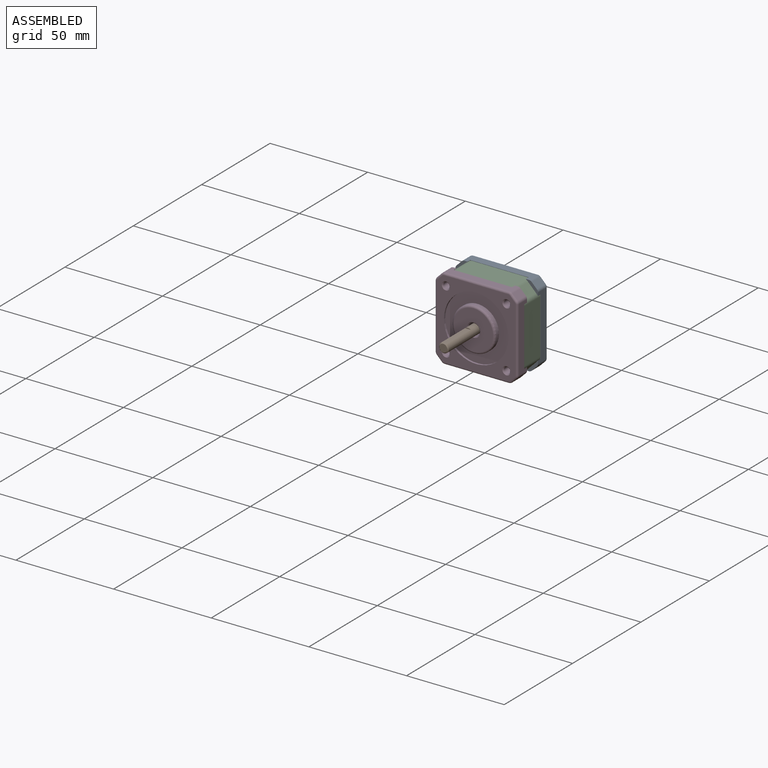
[diagram: assembled view]
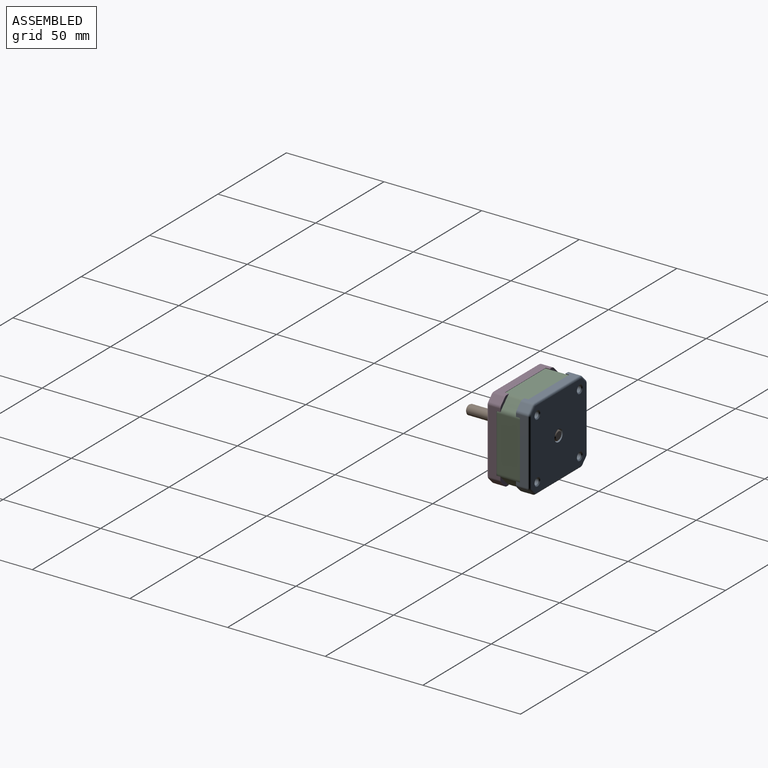
[diagram: assembled view, second angle]
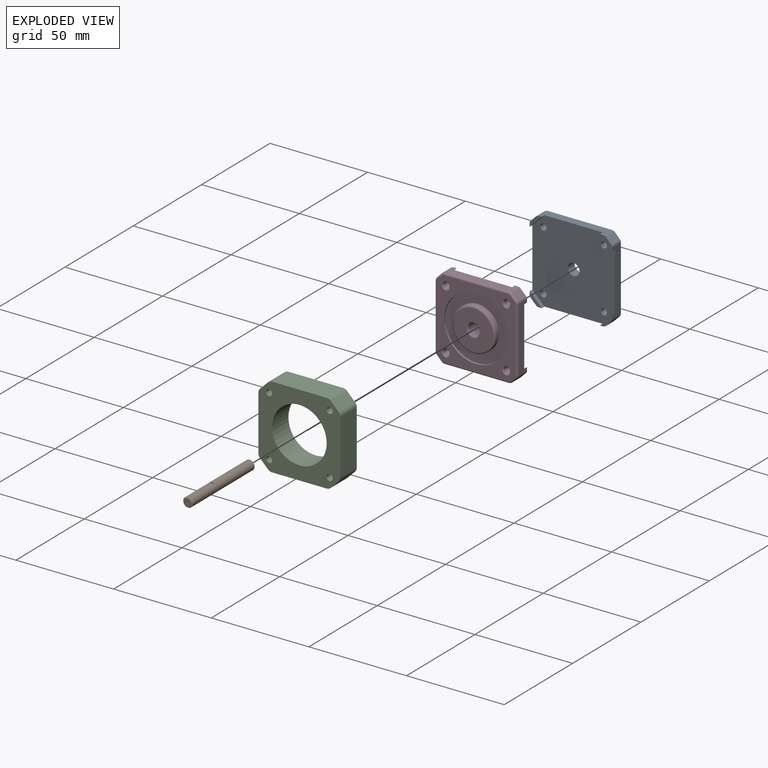
[diagram: exploded view]
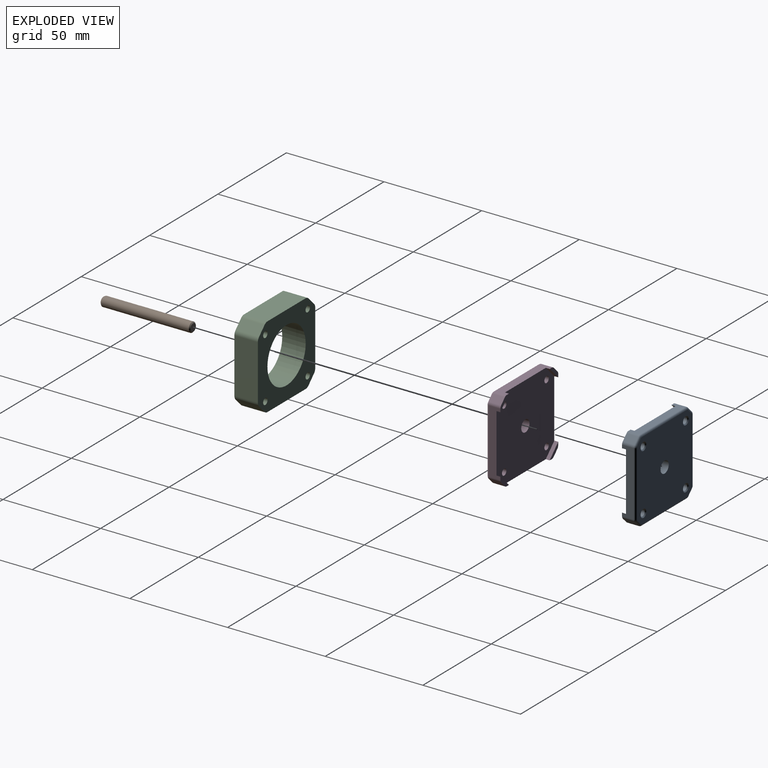
[diagram: exploded view, second angle]
ASSEMBLY  parts=4 mates=3
PART A: 51 faces, bbox 42.6x7x42.6 mm
  f0: plane 32.94x6mm, normal (0,0,1), area 138mm2, adj f9,f10,f22,f23,f31,f33,f34,f35
  f1: plane 32.94x6mm, normal (-1,0,0), area 138mm2, adj f10,f11,f24,f25,f30,f33,f34,f42
  f2: plane 32.94x6mm, normal (0,0,-1), area 138mm2, adj f11,f12,f20,f21,f30,f32,f33,f50
  f3: cylinder r=1.6mm len=4.5mm, axis (0,1,0), area 45.2mm2, adj f26,f33
  f4: cylinder r=1.6mm len=4.5mm, axis (0,1,0), area 45.2mm2, adj f29,f33
  f5: cylinder r=1.6mm len=4.5mm, axis (0,1,0), area 45.2mm2, adj f28,f33
  f6: cylinder r=1.6mm len=4.5mm, axis (0,1,0), area 45.2mm2, adj f27,f33
  f7: cylinder r=3mm len=6mm, axis (0,1,0), area 94.2mm2, adj f13,f33
  f8: plane 32.94x6mm, normal (1,0,0), area 138mm2, adj f9,f12,f18,f19,f31,f32,f33,f43
  f9: plane 6.24x6.24mm, normal (0,-1,0), area 11.9mm2, adj f0,f8,f17,f19,f23,f31
  f10: plane 6.24x6.24mm, normal (0,-1,0), area 11.9mm2, adj f0,f1,f14,f22,f24,f34
  f11: plane 6.24x6.24mm, normal (0,-1,0), area 11.9mm2, adj f1,f2,f15,f20,f25,f30
  f12: plane 6.24x6.24mm, normal (0,-1,0), area 11.9mm2, adj f2,f8,f16,f18,f21,f32
  f13: plane 40.3x40.3mm, normal (0,1,0), area 1518.9mm2, adj f7,f26,f27,f28,f29,f35,f36,f37
  f14: plane 6x2.68mm, normal (-0.71,0,0.71), area 22.7mm2, adj f10,f22,f24,f38
  f15: plane 6x2.68mm, normal (-0.71,0,-0.71), area 22.7mm2, adj f11,f20,f25,f46
  f16: plane 6x2.68mm, normal (0.71,0,-0.71), area 22.7mm2, adj f12,f18,f21,f47
  f17: plane 6x2.68mm, normal (0.71,0,0.71), area 22.7mm2, adj f9,f19,f23,f39
  f18: cylinder r=2mm len=6mm, axis (0,1,0), area 9.4mm2, adj f8,f12,f16,f45
  f19: cylinder r=2mm len=6mm, axis (0,1,0), area 9.4mm2, adj f8,f9,f17,f41
  f20: cylinder r=2mm len=6mm, axis (0,-1,0), area 9.4mm2, adj f2,f11,f15,f48
  f21: cylinder r=2mm len=6mm, axis (0,-1,0), area 9.4mm2, adj f2,f12,f16,f49
  f22: cylinder r=2mm len=6mm, axis (0,1,0), area 9.4mm2, adj f0,f10,f14,f36
  f23: cylinder r=2mm len=6mm, axis (0,1,0), area 9.4mm2, adj f0,f9,f17,f37
  f24: cylinder r=2mm len=6mm, axis (0,-1,0), area 9.4mm2, adj f1,f10,f14,f40
  f25: cylinder r=2mm len=6mm, axis (0,-1,0), area 9.4mm2, adj f1,f11,f15,f44
  f26: cone r=2.1mm half-angle=45deg, axis (0,1,0), area 8.2mm2, adj f3,f13
  f27: cone r=2.1mm half-angle=45deg, axis (0,1,0), area 8.2mm2, adj f6,f13
  f28: cone r=2.1mm half-angle=45deg, axis (0,1,0), area 8.2mm2, adj f5,f13
  f29: cone r=2.1mm half-angle=45deg, axis (0,1,0), area 8.2mm2, adj f4,f13
  f30: plane 6.24x6.24mm, normal (0.71,0,0.71), area 17.6mm2, adj f1,f2,f11,f33
  f31: plane 6.24x6.24mm, normal (-0.71,0,-0.71), area 17.6mm2, adj f0,f8,f9,f33
  f32: plane 6.24x6.24mm, normal (-0.71,0,0.71), area 17.6mm2, adj f2,f8,f12,f33
  f33: plane 42.3x42.3mm, normal (0,-1,0), area 1651mm2, adj f0,f1,f2,f3,f4,f5,f6,f7
  f34: plane 6.24x6.24mm, normal (0.71,0,-0.71), area 17.6mm2, adj f0,f1,f10,f33
  f35: cylinder r=1mm len=32.94mm, axis (-1,0,0), area 51.7mm2, adj f0,f13,f36,f37
  f36: torus R=1mm, axis (0,-1,0), area 2mm2, adj f13,f22,f35,f38
  f37: torus R=1mm, axis (0,-1,0), area 2mm2, adj f13,f23,f35,f39
  f38: cylinder r=1mm len=3.39mm, axis (0.71,0,0.71), area 5.9mm2, adj f13,f14,f36,f40
  f39: cylinder r=1mm len=3.39mm, axis (-0.71,0,0.71), area 5.9mm2, adj f13,f17,f37,f41
  f40: torus R=1mm, axis (0,-1,0), area 2mm2, adj f13,f24,f38,f42
  f41: torus R=1mm, axis (0,-1,0), area 2mm2, adj f13,f19,f39,f43
  f42: cylinder r=1mm len=32.94mm, axis (0,0,-1), area 51.7mm2, adj f1,f13,f40,f44
  f43: cylinder r=1mm len=32.94mm, axis (0,0,1), area 51.7mm2, adj f8,f13,f41,f45
  f44: torus R=1mm, axis (0,-1,0), area 2mm2, adj f13,f25,f42,f46
  f45: torus R=1mm, axis (0,-1,0), area 2mm2, adj f13,f18,f43,f47
  f46: cylinder r=1mm len=3.39mm, axis (0.71,0,-0.71), area 5.9mm2, adj f13,f15,f44,f48
  f47: cylinder r=1mm len=3.39mm, axis (-0.71,0,-0.71), area 5.9mm2, adj f13,f16,f45,f49
  f48: torus R=1mm, axis (0,-1,0), area 2mm2, adj f13,f20,f46,f50
  f49: torus R=1mm, axis (0,-1,0), area 2mm2, adj f13,f21,f47,f50
  f50: cylinder r=1mm len=32.94mm, axis (1,0,0), area 51.7mm2, adj f2,f13,f48,f49
PART B: 7 faces, bbox 5x46x5 mm
  f0: cylinder r=2.5mm len=45mm, axis (0,-1,0), area 650.6mm2, adj f1,f4,f5,f6
  f1: cone r=2mm half-angle=45deg, axis (0,1,0), area 8.6mm2, adj f0,f3,f6
  f2: plane 4x4mm, normal (0,1,0), area 12.6mm2, adj f4
  f3: plane 4x4mm, normal (0,-1,0), area 12.6mm2, adj f1
  f4: cone r=2.5mm half-angle=45deg, axis (0,-1,0), area 10mm2, adj f0,f2
  f5: plane 3x0.5mm, normal (0,-1,0), area 1mm2, adj f0,f6
  f6: plane 18x3mm, normal (0,0,1), area 53.5mm2, adj f0,f1,f5
PART C: 23 faces, bbox 42x12x42 mm
  f0: plane 12x4.04mm, normal (0.71,0,0.71), area 68.6mm2, adj f13,f14,f15,f22
  f1: plane 27.91x12mm, normal (0,0,1), area 335mm2, adj f13,f14,f15,f16
  f2: plane 12x4.04mm, normal (-0.71,0,0.71), area 68.6mm2, adj f13,f14,f16,f17
  f3: plane 27.91x12mm, normal (-1,0,0), area 335mm2, adj f13,f14,f17,f18
  f4: plane 12x4.04mm, normal (-0.71,0,-0.71), area 68.6mm2, adj f13,f14,f18,f19
  f5: plane 27.91x12mm, normal (0,0,-1), area 335mm2, adj f13,f14,f19,f20
  f6: plane 12x4.04mm, normal (0.71,0,-0.71), area 68.6mm2, adj f13,f14,f20,f21
  f7: cylinder r=1.6mm len=12mm, axis (0,1,0), area 120.6mm2, adj f13,f14
  f8: cylinder r=1.6mm len=12mm, axis (0,1,0), area 120.6mm2, adj f13,f14
  f9: cylinder r=1.6mm len=12mm, axis (0,1,0), area 120.6mm2, adj f13,f14
  f10: cylinder r=1.6mm len=12mm, axis (0,1,0), area 120.6mm2, adj f13,f14
  f11: cylinder r=14mm len=28mm, axis (0,1,0), area 1055.6mm2, adj f13,f14
  f12: plane 27.91x12mm, normal (1,0,0), area 335mm2, adj f13,f14,f21,f22
  f13: plane 42x42mm, normal (0,-1,0), area 1047.2mm2, adj f0,f1,f2,f3,f4,f5,f6,f7
  f14: plane 42x42mm, normal (0,1,0), area 1047.2mm2, adj f0,f1,f2,f3,f4,f5,f6,f7
  f15: cylinder r=3mm len=12mm, axis (0,-1,0), area 28.3mm2, adj f0,f1,f13,f14
  f16: cylinder r=3mm len=12mm, axis (0,-1,0), area 28.3mm2, adj f1,f2,f13,f14
  f17: cylinder r=3mm len=12mm, axis (0,1,0), area 28.3mm2, adj f2,f3,f13,f14
  f18: cylinder r=3mm len=12mm, axis (0,1,0), area 28.3mm2, adj f3,f4,f13,f14
  f19: cylinder r=3mm len=12mm, axis (0,1,0), area 28.3mm2, adj f4,f5,f13,f14
  f20: cylinder r=3mm len=12mm, axis (0,1,0), area 28.3mm2, adj f5,f6,f13,f14
  f21: cylinder r=3mm len=12mm, axis (0,-1,0), area 28.3mm2, adj f6,f12,f13,f14
  f22: cylinder r=3mm len=12mm, axis (0,-1,0), area 28.3mm2, adj f0,f12,f13,f14
PART D: 57 faces, bbox 42.6x9x42.6 mm
  f0: plane 32.94x6mm, normal (0,0,1), area 138mm2, adj f9,f10,f25,f26,f47,f53,f55,f56
  f1: plane 32.94x6mm, normal (-1,0,0), area 138mm2, adj f10,f11,f27,f28,f46,f52,f55,f56
  f2: plane 32.94x6mm, normal (0,0,-1), area 138mm2, adj f11,f12,f23,f24,f38,f52,f54,f55
  f3: plane 32.94x6mm, normal (1,0,0), area 138mm2, adj f9,f12,f21,f22,f39,f53,f54,f55
  f4: cylinder r=1.6mm len=4.5mm, axis (0,1,0), area 45.2mm2, adj f31,f55
  f5: cylinder r=1.6mm len=4.5mm, axis (0,1,0), area 45.2mm2, adj f34,f55
  f6: cylinder r=1.6mm len=4.5mm, axis (0,1,0), area 45.2mm2, adj f33,f55
  f7: cylinder r=1.6mm len=4.5mm, axis (0,1,0), area 45.2mm2, adj f32,f55
  f8: cylinder r=3mm len=6.5mm, axis (0,1,0), area 122.5mm2, adj f30,f55
  f9: plane 6.24x6.24mm, normal (0,-1,0), area 11.9mm2, adj f0,f3,f20,f22,f26,f53
  f10: plane 6.24x6.24mm, normal (0,-1,0), area 11.9mm2, adj f0,f1,f17,f25,f27,f56
  f11: plane 6.24x6.24mm, normal (0,-1,0), area 11.9mm2, adj f1,f2,f18,f23,f28,f52
  f12: plane 6.24x6.24mm, normal (0,-1,0), area 11.9mm2, adj f2,f3,f19,f21,f24,f54
  f13: plane 40.3x40.3mm, normal (0,1,0), area 691.6mm2, adj f15,f31,f32,f33,f34,f35,f36,f37
  f14: cylinder r=11mm len=22mm, axis (0,1,0), area 138.2mm2, adj f16,f51
  f15: cylinder r=16.5mm len=33.01mm, axis (0,1,0), area 103.7mm2, adj f13,f16
  f16: plane 33.01x33.01mm, normal (0,1,0), area 475.5mm2, adj f14,f15
  f17: plane 6x2.68mm, normal (-0.71,0,0.71), area 22.7mm2, adj f10,f25,f27,f50
  f18: plane 6x2.68mm, normal (-0.71,0,-0.71), area 22.7mm2, adj f11,f23,f28,f42
  f19: plane 6x2.68mm, normal (0.71,0,-0.71), area 22.7mm2, adj f12,f21,f24,f35
  f20: plane 6x2.68mm, normal (0.71,0,0.71), area 22.7mm2, adj f9,f22,f26,f43
  f21: cylinder r=2mm len=6mm, axis (0,1,0), area 9.4mm2, adj f3,f12,f19,f37
  f22: cylinder r=2mm len=6mm, axis (0,1,0), area 9.4mm2, adj f3,f9,f20,f41
  f23: cylinder r=2mm len=6mm, axis (0,-1,0), area 9.4mm2, adj f2,f11,f18,f40
  f24: cylinder r=2mm len=6mm, axis (0,-1,0), area 9.4mm2, adj f2,f12,f19,f36
  f25: cylinder r=2mm len=6mm, axis (0,1,0), area 9.4mm2, adj f0,f10,f17,f49
  f26: cylinder r=2mm len=6mm, axis (0,1,0), area 9.4mm2, adj f0,f9,f20,f45
  f27: cylinder r=2mm len=6mm, axis (0,-1,0), area 9.4mm2, adj f1,f10,f17,f48
  f28: cylinder r=2mm len=6mm, axis (0,-1,0), area 9.4mm2, adj f1,f11,f18,f44
  f29: plane 20x20mm, normal (0,1,0), area 275.7mm2, adj f30,f51
  f30: cone r=3.5mm half-angle=45deg, axis (0,1,0), area 14.4mm2, adj f8,f29
  f31: cone r=2.1mm half-angle=45deg, axis (0,1,0), area 8.2mm2, adj f4,f13
  f32: cone r=2.1mm half-angle=45deg, axis (0,1,0), area 8.2mm2, adj f7,f13
  f33: cone r=2.1mm half-angle=45deg, axis (0,1,0), area 8.2mm2, adj f6,f13
  f34: cone r=2.1mm half-angle=45deg, axis (0,1,0), area 8.2mm2, adj f5,f13
  f35: cylinder r=1mm len=3.39mm, axis (-0.71,0,-0.71), area 5.9mm2, adj f13,f19,f36,f37
  f36: torus R=1mm, axis (0,-1,0), area 2mm2, adj f13,f24,f35,f38
  f37: torus R=1mm, axis (0,-1,0), area 2mm2, adj f13,f21,f35,f39
  f38: cylinder r=1mm len=32.94mm, axis (1,0,0), area 51.7mm2, adj f2,f13,f36,f40
  f39: cylinder r=1mm len=32.94mm, axis (0,0,1), area 51.7mm2, adj f3,f13,f37,f41
  f40: torus R=1mm, axis (0,-1,0), area 2mm2, adj f13,f23,f38,f42
  f41: torus R=1mm, axis (0,-1,0), area 2mm2, adj f13,f22,f39,f43
  f42: cylinder r=1mm len=3.39mm, axis (0.71,0,-0.71), area 5.9mm2, adj f13,f18,f40,f44
  f43: cylinder r=1mm len=3.39mm, axis (-0.71,0,0.71), area 5.9mm2, adj f13,f20,f41,f45
  f44: torus R=1mm, axis (0,-1,0), area 2mm2, adj f13,f28,f42,f46
  f45: torus R=1mm, axis (0,-1,0), area 2mm2, adj f13,f26,f43,f47
  f46: cylinder r=1mm len=32.94mm, axis (0,0,-1), area 51.7mm2, adj f1,f13,f44,f48
  f47: cylinder r=1mm len=32.94mm, axis (-1,0,0), area 51.7mm2, adj f0,f13,f45,f49
  f48: torus R=1mm, axis (0,-1,0), area 2mm2, adj f13,f27,f46,f50
  f49: torus R=1mm, axis (0,-1,0), area 2mm2, adj f13,f25,f47,f50
  f50: cylinder r=1mm len=3.39mm, axis (0.71,0,0.71), area 5.9mm2, adj f13,f17,f48,f49
  f51: torus R=10mm, axis (0,-1,0), area 105mm2, adj f14,f29
  f52: plane 6.24x6.24mm, normal (0.71,0,0.71), area 17.6mm2, adj f1,f2,f11,f55
  f53: plane 6.24x6.24mm, normal (-0.71,0,-0.71), area 17.6mm2, adj f0,f3,f9,f55
  f54: plane 6.24x6.24mm, normal (-0.71,0,0.71), area 17.6mm2, adj f2,f3,f12,f55
  f55: plane 42.3x42.3mm, normal (0,-1,0), area 1651mm2, adj f0,f1,f2,f3,f4,f5,f6,f7
  f56: plane 6.24x6.24mm, normal (0.71,0,-0.71), area 17.6mm2, adj f0,f1,f10,f55
PLACE A t=(3.6,-18,48.95)mm
PLACE B t=(3.6,-64,48.95)mm
PLACE C t=(3.6,-23,48.95)mm
PLACE D rot(axis=(0,0,1),180deg) t=(3.6,-40,48.95)mm
MATE fastened B.f0 <-> A.f7  axis (0,1,0) through (3.6,-18,48.95)mm
MATE fastened A.f4 <-> C.f10  axis (0,-1,0) through (-11.9,-23,64.45)mm
MATE revolute D.f6 <-> C.f8  axis (0,1,0) through (19.1,-35,33.45)mm
